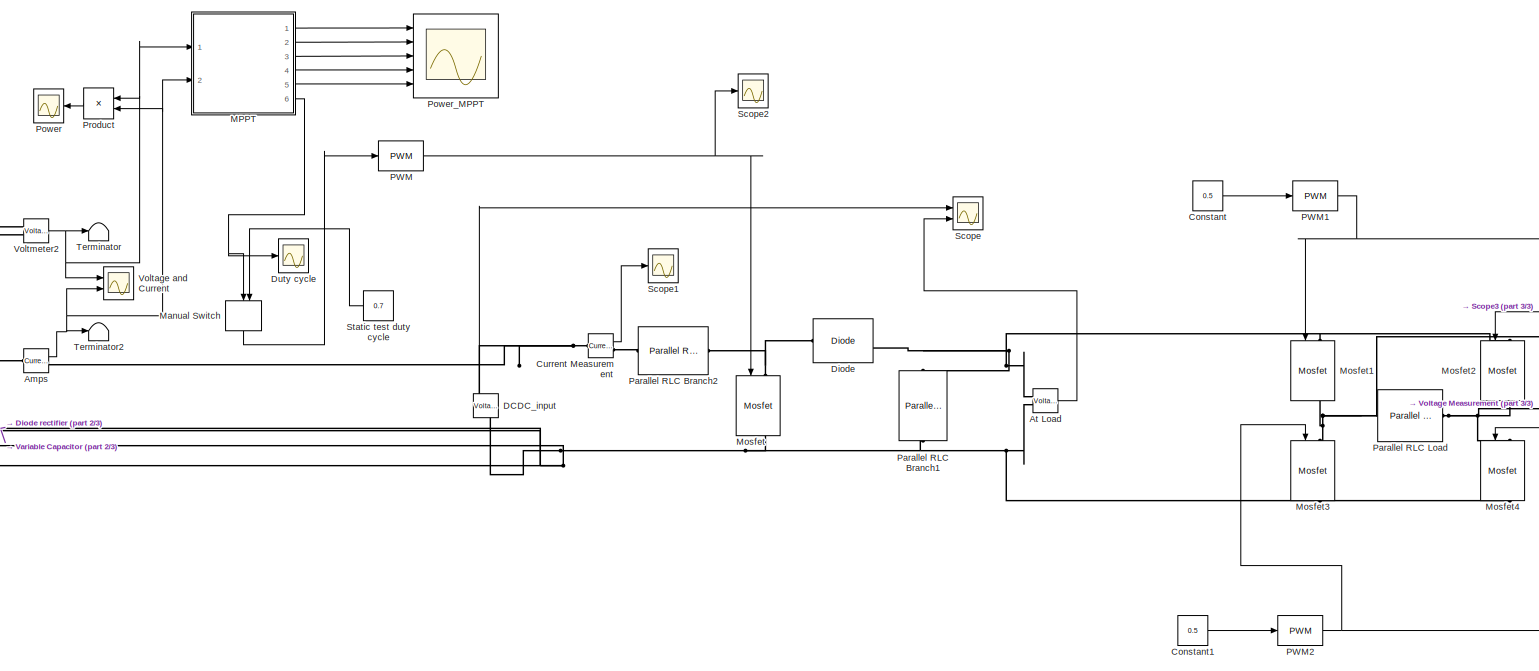
[diagram: root canvas - part 1/3, center side, full height]
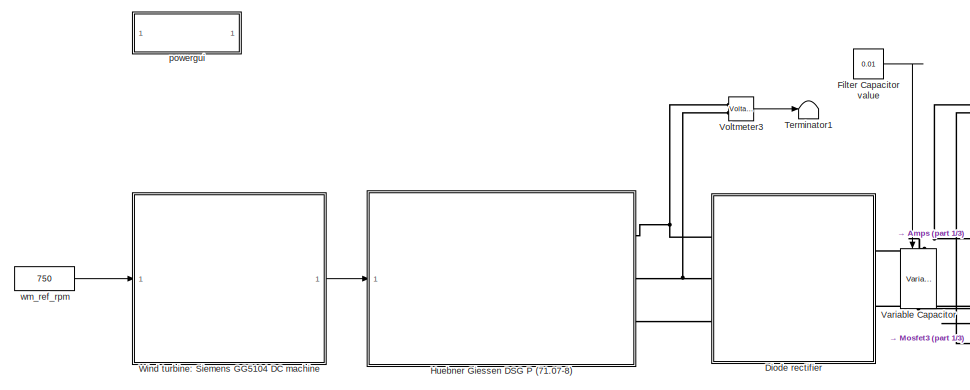
[diagram: root canvas - part 2/3, middle left region]
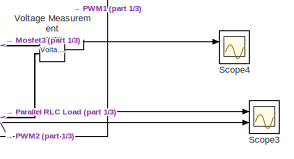
[diagram: root canvas - part 3/3, middle right region]
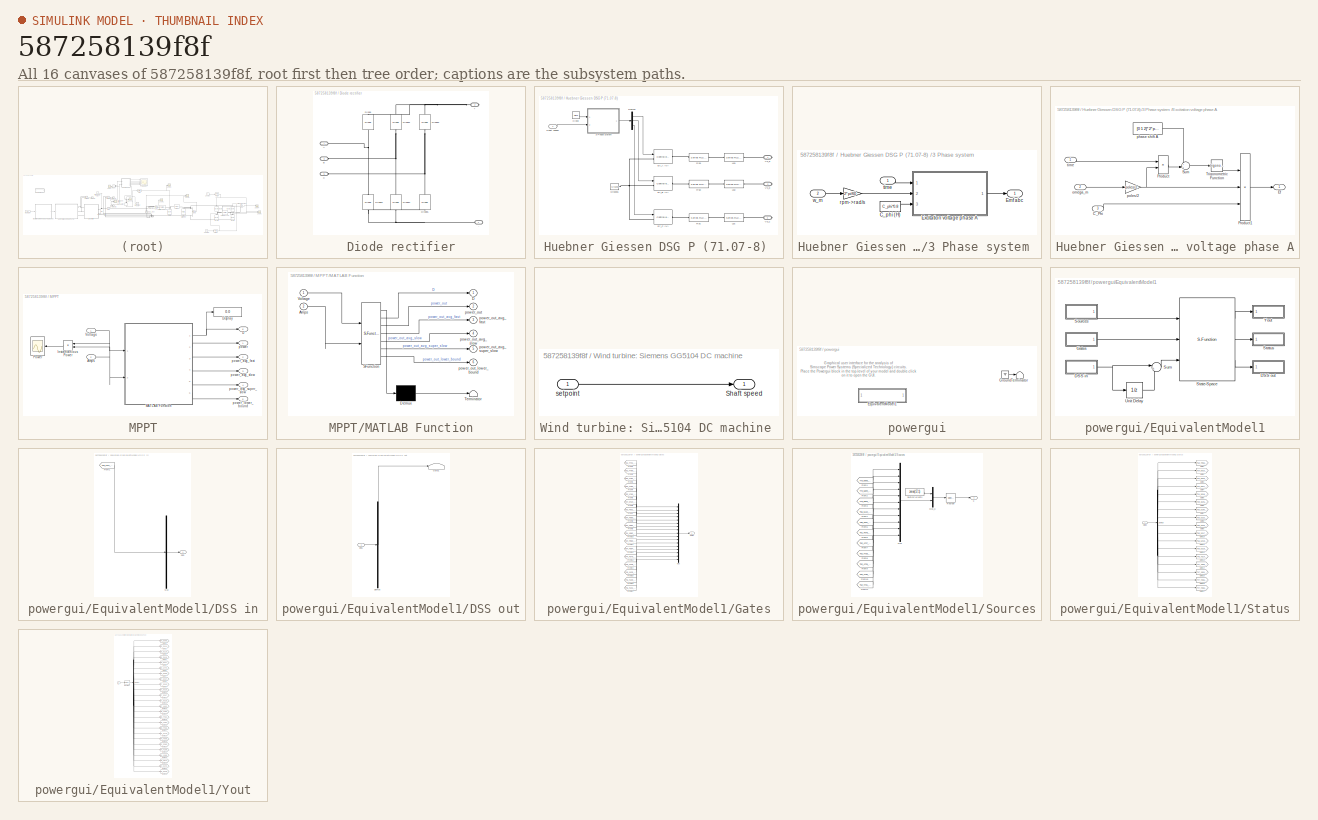
[diagram: thumbnail index - all 16 canvases of the model, root first then tree order]
MODEL slx_587258139f8f
KIND model
CONFIG AbsTol = auto
CONFIG EnableMultiTasking = off
CONFIG FixedStep = auto
CONFIG MaxStep = auto
CONFIG MinStep = auto
CONFIG RelTol = 1e-3
CONFIG SampleTimeConstraint = Unconstrained
CONFIG SolverName = VariableStepAuto
CONFIG StartTime = 0.0
CONFIG StopTime = 5
WORKSPACE source: mxarray member
WORKSPACE C = 0.00044
WORKSPACE L = 0.00025
BLOCK [Reference] Amps  REF=spsCurrentMeasurementLib/Current Measurement
  Ports = [0, 1, 0, 0, 0, 1, 1]
  SourceBlock = spsCurrentMeasurementLib/Current Measurement
  SourceType = Current Measurement
  UserDataPersistent = on
BLOCK [Reference] At Load  REF=spsVoltageMeasurementLib/Voltage Measurement
  Ports = [0, 1, 0, 0, 0, 2]
  SourceBlock = spsVoltageMeasurementLib/Voltage Measurement
  SourceType = Voltage Measurement
  UserDataPersistent = on
BLOCK [Constant] Constant
  Value = 0.5
BLOCK [Constant] Constant1
  Value = 0.5
BLOCK [Reference] Current Measurement  REF=spsCurrentMeasurementLib/Current Measurement
  Ports = [0, 1, 0, 0, 0, 1, 1]
  SourceBlock = spsCurrentMeasurementLib/Current Measurement
  SourceType = Current Measurement
  UserDataPersistent = on
BLOCK [Reference] DCDC_input  REF=spsVoltageMeasurementLib/Voltage Measurement
  NameLocation = top
  Ports = [0, 1, 0, 0, 0, 2]
  SourceBlock = spsVoltageMeasurementLib/Voltage Measurement
  SourceType = Voltage Measurement
  UserDataPersistent = on
BLOCK [Reference] Diode  REF=spsDiodeLib/Diode
  Ports = [0, 1, 0, 0, 0, 1, 1]
  SourceBlock = spsDiodeLib/Diode
  SourceType = Diode
BLOCK [SubSystem] Diode rectifier
  Ports = [0, 0, 0, 0, 0, 3, 2]
BLOCK [PMIOPort] Diode rectifier/+
  NameLocation = top
  Port = 2
  Side = Right
BLOCK [PMIOPort] Diode rectifier/-
  NameLocation = top
  Port = 4
  Side = Right
BLOCK [PMIOPort] Diode rectifier/A
  Side = Left
BLOCK [PMIOPort] Diode rectifier/B
  Port = 3
  Side = Left
BLOCK [PMIOPort] Diode rectifier/C
  Port = 5
  Side = Left
BLOCK [Reference] Diode rectifier/Diode  REF=spsDiodeLib/Diode
  NameLocation = right
  Ports = [0, 0, 0, 0, 0, 1, 1]
  SourceBlock = spsDiodeLib/Diode
  SourceType = Diode
BLOCK [Reference] Diode rectifier/Diode1  REF=spsDiodeLib/Diode
  NameLocation = right
  Ports = [0, 0, 0, 0, 0, 1, 1]
  SourceBlock = spsDiodeLib/Diode
  SourceType = Diode
BLOCK [Reference] Diode rectifier/Diode2  REF=spsDiodeLib/Diode
  NameLocation = right
  Ports = [0, 0, 0, 0, 0, 1, 1]
  SourceBlock = spsDiodeLib/Diode
  SourceType = Diode
BLOCK [Reference] Diode rectifier/Diode3  REF=spsDiodeLib/Diode
  NameLocation = right
  Ports = [0, 0, 0, 0, 0, 1, 1]
  SourceBlock = spsDiodeLib/Diode
  SourceType = Diode
BLOCK [Reference] Diode rectifier/Diode4  REF=spsDiodeLib/Diode
  NameLocation = right
  Ports = [0, 0, 0, 0, 0, 1, 1]
  SourceBlock = spsDiodeLib/Diode
  SourceType = Diode
BLOCK [Reference] Diode rectifier/Diode5  REF=spsDiodeLib/Diode
  NameLocation = right
  Ports = [0, 0, 0, 0, 0, 1, 1]
  SourceBlock = spsDiodeLib/Diode
  SourceType = Diode
BLOCK [Scope] Duty cycle
  Floating = off
  NumInputPorts = 1
  Ports = [1]
  ScopeSpecificationString = Simulink.scopes.TimeScopeBlockCfg('CurrentConfiguration', extmgr.ConfigurationSet(extmgr.Configuration('Core','General UI',true),extmgr.Configuration('Core','Source UI',true),extmgr.Configuration('Sources','WiredSimulink',true,'DataLoggingVariableName','ScopeData1'),extmgr.Configuration('Visuals','Time Domain',true,'SerializedDisplays',{struct('MinYLimReal','0','MaxYLimReal','1','YLabelReal','','M...<+1384ch>
BLOCK [Constant] Filter Capacitor value
  Value = 0.01
BLOCK [SubSystem] Huebner Giessen DSG P (71.07-8) 
  Ports = [1, 0, 0, 0, 0, 0, 3]
BLOCK [SubSystem] Huebner Giessen DSG P (71.07-8) /3 Phase system 
  Ports = [2, 1]
BLOCK [Constant] Huebner Giessen DSG P (71.07-8) /3 Phase system /C_phi (H)
  Value = C_phi*0.8
  VectorParams1D = off
BLOCK [Outport] Huebner Giessen DSG P (71.07-8) /3 Phase system /Emf abc 
BLOCK [SubSystem] Huebner Giessen DSG P (71.07-8) /3 Phase system /Excitation voltage phase A
  Ports = [3, 1]
BLOCK [Inport] Huebner Giessen DSG P (71.07-8) /3 Phase system /Excitation voltage phase A/C_Phi
  Port = 3
BLOCK [Outport] Huebner Giessen DSG P (71.07-8) /3 Phase system /Excitation voltage phase A/Ef
BLOCK [Product] Huebner Giessen DSG P (71.07-8) /3 Phase system /Excitation voltage phase A/Product
  Ports = [2, 1]
  RndMeth = Zero
BLOCK [Product] Huebner Giessen DSG P (71.07-8) /3 Phase system /Excitation voltage phase A/Product1
  Inputs = 3
  Ports = [3, 1]
  RndMeth = Zero
BLOCK [Sum] Huebner Giessen DSG P (71.07-8) /3 Phase system /Excitation voltage phase A/Sum
  Inputs = ++|
  Ports = [2, 1]
BLOCK [Trigonometry] Huebner Giessen DSG P (71.07-8) /3 Phase system /Excitation voltage phase A/Trigonometric Function
  Ports = [1, 1]
BLOCK [Inport] Huebner Giessen DSG P (71.07-8) /3 Phase system /Excitation voltage phase A/omega_m
  Port = 2
BLOCK [Constant] Huebner Giessen DSG P (71.07-8) /3 Phase system /Excitation voltage phase A/phase shift A
  Value = [0 1 2]*2*pi/3
BLOCK [Gain] Huebner Giessen DSG P (71.07-8) /3 Phase system /Excitation voltage phase A/poles//2
  Gain = poles/2
BLOCK [Inport] Huebner Giessen DSG P (71.07-8) /3 Phase system /Excitation voltage phase A/time
BLOCK [Gain] Huebner Giessen DSG P (71.07-8) /3 Phase system /rpm->rad//s
  Gain = 2*pi/60
BLOCK [Inport] Huebner Giessen DSG P (71.07-8) /3 Phase system /time
BLOCK [Inport] Huebner Giessen DSG P (71.07-8) /3 Phase system /w_m
  Port = 2
BLOCK [Clock] Huebner Giessen DSG P (71.07-8) /Clock
BLOCK [Demux] Huebner Giessen DSG P (71.07-8) /Demux
  Outputs = 3
  Ports = [1, 3]
BLOCK [Reference] Huebner Giessen DSG P (71.07-8) /Ef_A (V)  REF=spsControlledVoltageSourceLib/Controlled Voltage Source
  Ports = [1, 0, 0, 0, 0, 1, 1]
  SourceBlock = spsControlledVoltageSourceLib/Controlled Voltage Source
  SourceType = Controlled Voltage Source
BLOCK [Reference] Huebner Giessen DSG P (71.07-8) /Ef_B (V)  REF=spsControlledVoltageSourceLib/Controlled Voltage Source
  Ports = [1, 0, 0, 0, 0, 1, 1]
  SourceBlock = spsControlledVoltageSourceLib/Controlled Voltage Source
  SourceType = Controlled Voltage Source
BLOCK [Reference] Huebner Giessen DSG P (71.07-8) /Ef_C (V)  REF=spsControlledVoltageSourceLib/Controlled Voltage Source
  Ports = [1, 0, 0, 0, 0, 1, 1]
  SourceBlock = spsControlledVoltageSourceLib/Controlled Voltage Source
  SourceType = Controlled Voltage Source
BLOCK [Reference] Huebner Giessen DSG P (71.07-8) /Ground1  REF=spsGroundLib/Ground
  Ports = [0, 0, 0, 0, 0, 1]
  SourceBlock = spsGroundLib/Ground
  SourceType = Ground
BLOCK [Reference] Huebner Giessen DSG P (71.07-8) /Lsa  REF=spsSeriesRLCBranchLib/Series RLC Branch
  Ports = [0, 0, 0, 0, 0, 1, 1]
  SourceBlock = spsSeriesRLCBranchLib/Series RLC Branch
  SourceType = Series RLC Branch
BLOCK [Reference] Huebner Giessen DSG P (71.07-8) /Lsb  REF=spsSeriesRLCBranchLib/Series RLC Branch
  Ports = [0, 0, 0, 0, 0, 1, 1]
  SourceBlock = spsSeriesRLCBranchLib/Series RLC Branch
  SourceType = Series RLC Branch
BLOCK [Reference] Huebner Giessen DSG P (71.07-8) /Lsc  REF=spsSeriesRLCBranchLib/Series RLC Branch
  Ports = [0, 0, 0, 0, 0, 1, 1]
  SourceBlock = spsSeriesRLCBranchLib/Series RLC Branch
  SourceType = Series RLC Branch
BLOCK [Reference] Huebner Giessen DSG P (71.07-8) /Rsa  REF=spsSeriesRLCBranchLib/Series RLC Branch
  Ports = [0, 0, 0, 0, 0, 1, 1]
  SourceBlock = spsSeriesRLCBranchLib/Series RLC Branch
  SourceType = Series RLC Branch
BLOCK [Reference] Huebner Giessen DSG P (71.07-8) /Rsb  REF=spsSeriesRLCBranchLib/Series RLC Branch
  Ports = [0, 0, 0, 0, 0, 1, 1]
  SourceBlock = spsSeriesRLCBranchLib/Series RLC Branch
  SourceType = Series RLC Branch
BLOCK [Reference] Huebner Giessen DSG P (71.07-8) /Rsc  REF=spsSeriesRLCBranchLib/Series RLC Branch
  Ports = [0, 0, 0, 0, 0, 1, 1]
  SourceBlock = spsSeriesRLCBranchLib/Series RLC Branch
  SourceType = Series RLC Branch
BLOCK [Inport] Huebner Giessen DSG P (71.07-8) /Shaft speed
BLOCK [PMIOPort] Huebner Giessen DSG P (71.07-8) /Vs_a
  Side = Right
BLOCK [PMIOPort] Huebner Giessen DSG P (71.07-8) /Vs_b
  Port = 2
  Side = Right
BLOCK [PMIOPort] Huebner Giessen DSG P (71.07-8) /Vs_c
  Port = 3
  Side = Right
BLOCK [SubSystem] MPPT
  Ports = [2, 6]
BLOCK [Inport] MPPT/Amps
  Port = 2
BLOCK [Outport] MPPT/D
  Port = 6
BLOCK [Display] MPPT/Display
  Decimation = 1
  Ports = [1]
BLOCK [Product] MPPT/Instantanious Power
  NameLocation = top
  Ports = [2, 1]
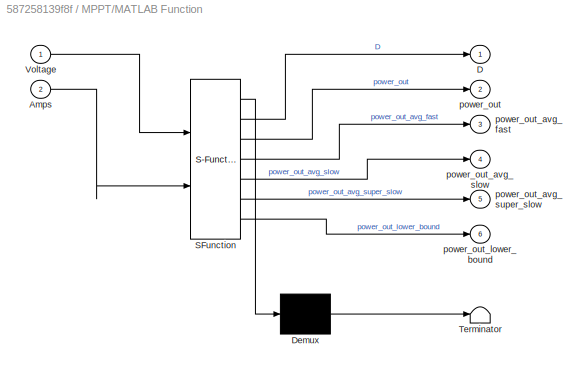
BLOCK [SubSystem] MPPT/MATLAB Function
  ErrorFcn = Stateflow.Translate.translate
  PermitHierarchicalResolution = ExplicitOnly
  Ports = [2, 6]
  SFBlockType = MATLAB Function
  SystemSampleTime = 0.0002
  TreatAsAtomicUnit = on
BLOCK [Demux] MPPT/MATLAB Function/ Demux 
  Outputs = 1
  Ports = [1, 1]
BLOCK [S-Function] MPPT/MATLAB Function/ SFunction 
  EnableBusSupport = on
  FunctionName = sf_sfun
  PortCounts = [2 7]
  Ports = [2, 7]
  SFcnIsStateOwnerBlock = off
  SFunctionDeploymentMode = off
  Tag = Stateflow S-Function 2
BLOCK [Terminator] MPPT/MATLAB Function/ Terminator 
BLOCK [Inport] MPPT/MATLAB Function/Amps
  Port = 2
BLOCK [Outport] MPPT/MATLAB Function/D
BLOCK [Inport] MPPT/MATLAB Function/Voltage
BLOCK [Outport] MPPT/MATLAB Function/power_out
  Port = 2
BLOCK [Outport] MPPT/MATLAB Function/power_out_avg_fast
  Port = 3
BLOCK [Outport] MPPT/MATLAB Function/power_out_avg_slow
  Port = 4
BLOCK [Outport] MPPT/MATLAB Function/power_out_avg_super_slow
  Port = 5
BLOCK [Outport] MPPT/MATLAB Function/power_out_lower_bound
  Port = 6
BLOCK [Scope] MPPT/Power
  Floating = off
  NameLocation = top
  NumInputPorts = 1
  Ports = [1]
  ScopeSpecificationString = Simulink.scopes.TimeScopeBlockCfg('CurrentConfiguration', extmgr.ConfigurationSet(extmgr.Configuration('Core','General UI',true),extmgr.Configuration('Core','Source UI',true),extmgr.Configuration('Sources','WiredSimulink',true,'DataLoggingVariableName','ScopeData1'),extmgr.Configuration('Visuals','Time Domain',true,'SerializedDisplays',{struct('MinYLimReal','-52.45852','MaxYLimReal','472.12667','Y...<+1462ch>
BLOCK [Inport] MPPT/Voltage
BLOCK [Outport] MPPT/power
BLOCK [Outport] MPPT/power_avg_fast
  Port = 2
BLOCK [Outport] MPPT/power_avg_slow
  Port = 3
BLOCK [Outport] MPPT/power_avg_super_slow
  Port = 4
BLOCK [Outport] MPPT/power_lower_bound
  Port = 5
BLOCK [ManualSwitch] Manual Switch
  NameLocation = left
BLOCK [Reference] Mosfet  REF=spsMosfetLib/Mosfet
  NameLocation = left
  Ports = [1, 1, 0, 0, 0, 1, 1]
  SourceBlock = spsMosfetLib/Mosfet
  SourceType = Mosfet
BLOCK [Reference] Mosfet1  REF=spsMosfetLib/Mosfet
  NameLocation = left
  Ports = [1, 1, 0, 0, 0, 1, 1]
  SourceBlock = spsMosfetLib/Mosfet
  SourceType = Mosfet
BLOCK [Reference] Mosfet2  REF=spsMosfetLib/Mosfet
  NameLocation = left
  Ports = [1, 1, 0, 0, 0, 1, 1]
  SourceBlock = spsMosfetLib/Mosfet
  SourceType = Mosfet
BLOCK [Reference] Mosfet3  REF=spsMosfetLib/Mosfet
  NameLocation = left
  Ports = [1, 1, 0, 0, 0, 1, 1]
  SourceBlock = spsMosfetLib/Mosfet
  SourceType = Mosfet
BLOCK [Reference] Mosfet4  REF=spsMosfetLib/Mosfet
  NameLocation = left
  Ports = [1, 1, 0, 0, 0, 1, 1]
  SourceBlock = spsMosfetLib/Mosfet
  SourceType = Mosfet
BLOCK [Reference] PWM  REF=simulink/Discontinuities/PWM
  DisableCoverage = on
  Ports = [1, 1]
  SourceBlock = simulink/Discontinuities/PWM
  SourceType = PWM
BLOCK [Reference] PWM1  REF=simulink/Discontinuities/PWM
  DisableCoverage = on
  Ports = [1, 1]
  SourceBlock = simulink/Discontinuities/PWM
  SourceType = PWM
BLOCK [Reference] PWM2  REF=simulink/Discontinuities/PWM
  DisableCoverage = on
  Ports = [1, 1]
  SourceBlock = simulink/Discontinuities/PWM
  SourceType = PWM
BLOCK [Reference] Parallel RLC Branch1  REF=spsParallelRLCBranchLib/Parallel RLC Branch
  AttributesFormatString = \n
  NameLocation = left
  Ports = [0, 0, 0, 0, 0, 1, 1]
  SourceBlock = spsParallelRLCBranchLib/Parallel RLC Branch
  SourceType = Parallel RLC Branch
BLOCK [Reference] Parallel RLC Branch2  REF=spsParallelRLCBranchLib/Parallel RLC Branch
  AttributesFormatString = \n
  Ports = [0, 0, 0, 0, 0, 1, 1]
  SourceBlock = spsParallelRLCBranchLib/Parallel RLC Branch
  SourceType = Parallel RLC Branch
BLOCK [Reference] Parallel RLC Load  REF=spsParallelRLCLoadLib/Parallel RLC Load
  AttributesFormatString = \n
  Ports = [0, 0, 0, 0, 0, 1, 1]
  SourceBlock = spsParallelRLCLoadLib/Parallel RLC Load
  SourceType = Parallel RLC Load
BLOCK [Scope] Power
  Floating = off
  NameLocation = top
  NumInputPorts = 1
  Ports = [1]
  ScopeSpecificationString = Simulink.scopes.TimeScopeBlockCfg('CurrentConfiguration', extmgr.ConfigurationSet(extmgr.Configuration('Core','General UI',true),extmgr.Configuration('Core','Source UI',true),extmgr.Configuration('Sources','WiredSimulink',true,'DataLoggingVariableName','ScopeData2'),extmgr.Configuration('Visuals','Time Domain',true,'SerializedDisplays',{struct('MinYLimReal','0','MaxYLimReal','450','YLabelReal','',...<+1420ch>
BLOCK [Scope] Power_MPPT
  Floating = off
  NumInputPorts = 5
  Ports = [5]
  ScopeSpecificationString = Simulink.scopes.TimeScopeBlockCfg('CurrentConfiguration', extmgr.ConfigurationSet(extmgr.Configuration('Core','General UI',true),extmgr.Configuration('Core','Source UI',true),extmgr.Configuration('Sources','WiredSimulink',true,'DataLoggingVariableName','ScopeData3'),extmgr.Configuration('Visuals','Time Domain',true,'SerializedDisplays',{struct('MinYLimReal','0','MaxYLimReal','400','YLabelReal','',...<+1517ch>
BLOCK [Product] Product
  NameLocation = top
  Ports = [2, 1]
BLOCK [Scope] Scope
  Floating = off
  NumInputPorts = 2
  Ports = [2]
  ScopeSpecificationString = Simulink.scopes.TimeScopeBlockCfg('CurrentConfiguration', extmgr.ConfigurationSet(extmgr.Configuration('Core','General UI',true),extmgr.Configuration('Core','Source UI',true),extmgr.Configuration('Sources','WiredSimulink',true,'DataLoggingVariableName','ScopeData4'),extmgr.Configuration('Visuals','Time Domain',true,'SerializedDisplays',{struct('MinYLimReal','0','MaxYLimReal','500','YLabelReal','',...<+1402ch>
BLOCK [Scope] Scope1
  Floating = off
  NumInputPorts = 1
  Ports = [1]
  ScopeSpecificationString = Simulink.scopes.TimeScopeBlockCfg('CurrentConfiguration', extmgr.ConfigurationSet(extmgr.Configuration('Core','General UI',true),extmgr.Configuration('Core','Source UI',true),extmgr.Configuration('Sources','WiredSimulink',true,'DataLoggingVariableName','ScopeData5'),extmgr.Configuration('Visuals','Time Domain',true,'SerializedDisplays',{struct('MinYLimReal','0','MaxYLimReal','100','YLabelReal','',...<+1430ch>
BLOCK [Scope] Scope2
  Floating = off
  NumInputPorts = 1
  Ports = [1]
  ScopeSpecificationString = Simulink.scopes.TimeScopeBlockCfg('CurrentConfiguration', extmgr.ConfigurationSet(extmgr.Configuration('Core','General UI',true),extmgr.Configuration('Core','Source UI',true),extmgr.Configuration('Sources','WiredSimulink',true,'DataLoggingVariableName','ScopeData6'),extmgr.Configuration('Visuals','Time Domain',true,'SerializedDisplays',{struct('MinYLimReal','-0.00623','MaxYLimReal','1.00547','YLab...<+1407ch>
BLOCK [Scope] Scope3
  Floating = off
  NumInputPorts = 2
  Ports = [2]
  ScopeSpecificationString = Simulink.scopes.TimeScopeBlockCfg('CurrentConfiguration', extmgr.ConfigurationSet(extmgr.Configuration('Core','General UI',true),extmgr.Configuration('Core','Source UI',true),extmgr.Configuration('Sources','WiredSimulink',true,'DataLoggingVariableName','ScopeData8'),extmgr.Configuration('Visuals','Time Domain',true,'SerializedDisplays',{struct('MinYLimReal','-0.125','MaxYLimReal','1.125','YLabelRe...<+1385ch>
BLOCK [Scope] Scope4
  Floating = off
  NumInputPorts = 2
  Ports = [2]
  ScopeSpecificationString = Simulink.scopes.TimeScopeBlockCfg('CurrentConfiguration', extmgr.ConfigurationSet(extmgr.Configuration('Core','General UI',true),extmgr.Configuration('Core','Source UI',true),extmgr.Configuration('Sources','WiredSimulink',true,'DataLoggingVariableName','ScopeData9'),extmgr.Configuration('Visuals','Time Domain',true,'SerializedDisplays',{struct('MinYLimReal','-209.63812','MaxYLimReal','209.86994','...<+1432ch>
BLOCK [Constant] Static test duty cycle
  Value = 0.7
BLOCK [Terminator] Terminator
BLOCK [Terminator] Terminator1
BLOCK [Terminator] Terminator2
BLOCK [Reference] Variable Capacitor  REF=spsVariableCapacitorLib/Variable Capacitor
  NameLocation = left
  Ports = [1, 0, 0, 0, 0, 1, 1]
  SourceBlock = spsVariableCapacitorLib/Variable Capacitor
  SourceType = Variable Capacitor
BLOCK [Reference] Voltage Measurement  REF=spsVoltageMeasurementLib/Voltage Measurement
  Ports = [0, 1, 0, 0, 0, 2]
  SourceBlock = spsVoltageMeasurementLib/Voltage Measurement
  SourceType = Voltage Measurement
  UserDataPersistent = on
BLOCK [Scope] Voltage and Current
  Floating = off
  NumInputPorts = 2
  Ports = [2]
  ScopeSpecificationString = Simulink.scopes.TimeScopeBlockCfg('CurrentConfiguration', extmgr.ConfigurationSet(extmgr.Configuration('Core','General UI',true),extmgr.Configuration('Core','Source UI',true),extmgr.Configuration('Sources','WiredSimulink',true,'DataLoggingVariableName','ScopeData7'),extmgr.Configuration('Visuals','Time Domain',true,'SerializedDisplays',{struct('MinYLimReal','-4.84101','MaxYLimReal','80','YLabelRea...<+1440ch>
BLOCK [Reference] Voltmeter2  REF=spsVoltageMeasurementLib/Voltage Measurement
  Ports = [0, 1, 0, 0, 0, 2]
  SourceBlock = spsVoltageMeasurementLib/Voltage Measurement
  SourceType = Voltage Measurement
  UserDataPersistent = on
BLOCK [Reference] Voltmeter3  REF=spsVoltageMeasurementLib/Voltage Measurement
  Ports = [0, 1, 0, 0, 0, 2]
  SourceBlock = spsVoltageMeasurementLib/Voltage Measurement
  SourceType = Voltage Measurement
  UserDataPersistent = on
BLOCK [SubSystem] Wind turbine: Siemens GG5104 DC machine 
  Ports = [1, 1]
BLOCK [Outport] Wind turbine: Siemens GG5104 DC machine /Shaft speed
BLOCK [Inport] Wind turbine: Siemens GG5104 DC machine /setpoint
BLOCK [SubSystem] powergui
  AncestorBlock = spspowerguiLib/powergui
  DialogController = POWERSYS.PowerSysDialog
  InitFcn = powergui( 'InitFcn_Callback' , gcb , 0 , [ ] );
  OpenFcn = sps_rtmsupport('OpenFcn',gcbh)
  Ports = []
  PreSaveFcn = powergui( 'PreSaveFcn_Callback' , gcb , [ ] , [ ] );
  Priority = 1
BLOCK [SubSystem] powergui/EquivalentModel1
  Ports = []
BLOCK [SubSystem] powergui/EquivalentModel1/DSS in
  Ports = [0, 1]
BLOCK [Outport] powergui/EquivalentModel1/DSS in/DSS
  VectorParamsAs1DForOutWhenUnconnected = off
BLOCK [From] powergui/EquivalentModel1/DSS in/From1
  GotoTag = T58_5457_5876453571207
  TagVisibility = global
BLOCK [Mux] powergui/EquivalentModel1/DSS in/Mux
  DisplayOption = bar
  Inputs = 1
  Ports = [1, 1]
BLOCK [SubSystem] powergui/EquivalentModel1/DSS out
  Ports = [1]
BLOCK [Inport] powergui/EquivalentModel1/DSS out/DSS
BLOCK [Demux] powergui/EquivalentModel1/DSS out/Demux
  Outputs = 1
  Ports = [1, 1]
BLOCK [Terminator] powergui/EquivalentModel1/DSS out/Goto1
BLOCK [SubSystem] powergui/EquivalentModel1/Gates
  Ports = [0, 1]
BLOCK [From] powergui/EquivalentModel1/Gates/From1
  GotoTag = T51_4731_4294674022502
  TagVisibility = global
BLOCK [From] powergui/EquivalentModel1/Gates/From10
  GotoTag = T54_4982_4587502394116
  TagVisibility = global
BLOCK [From] powergui/EquivalentModel1/Gates/From11
  GotoTag = T54_4983_4587669453781
  TagVisibility = global
BLOCK [From] powergui/EquivalentModel1/Gates/From12
  GotoTag = T54_4984_4587985386038
  TagVisibility = global
BLOCK [From] powergui/EquivalentModel1/Gates/From13
  GotoTag = T44_4079_3037728044863
  TagVisibility = global
BLOCK [From] powergui/EquivalentModel1/Gates/From14
  GotoTag = T45_4128_3114987659919
  TagVisibility = global
BLOCK [From] powergui/EquivalentModel1/Gates/From15
  GotoTag = T45_4129_3114093084343
  TagVisibility = global
BLOCK [From] powergui/EquivalentModel1/Gates/From16
  GotoTag = T45_4130_3113284162545
  TagVisibility = global
BLOCK [From] powergui/EquivalentModel1/Gates/From17
  GotoTag = T45_4131_3112560894525
  TagVisibility = global
BLOCK [From] powergui/EquivalentModel1/Gates/From2
  GotoTag = T52_4780_4436796252202
  TagVisibility = global
BLOCK [From] powergui/EquivalentModel1/Gates/From3
  GotoTag = T52_4781_4435253993224
  TagVisibility = global
BLOCK [From] powergui/EquivalentModel1/Gates/From4
  GotoTag = T52_4782_4433785857707
  TagVisibility = global
BLOCK [From] powergui/EquivalentModel1/Gates/From5
  GotoTag = T52_4783_4432391845652
  TagVisibility = global
BLOCK [From] powergui/EquivalentModel1/Gates/From6
  GotoTag = T37_3410_1979015038619
  TagVisibility = global
BLOCK [From] powergui/EquivalentModel1/Gates/From7
  GotoTag = T53_4931_4595405140994
  TagVisibility = global
BLOCK [From] powergui/EquivalentModel1/Gates/From8
  GotoTag = T54_4980_4587614892565
  TagVisibility = global
BLOCK [From] powergui/EquivalentModel1/Gates/From9
  GotoTag = T54_4981_4587484207044
  TagVisibility = global
BLOCK [Mux] powergui/EquivalentModel1/Gates/Mux
  DisplayOption = bar
  Inputs = [1 1 1 1 1 1 1 1 1 1 1 1 1 1 1 1 1]
  Ports = [17, 1]
BLOCK [Outport] powergui/EquivalentModel1/Gates/gates
  VectorParamsAs1DForOutWhenUnconnected = off
BLOCK [SubSystem] powergui/EquivalentModel1/Sources
  Ports = [0, 1]
BLOCK [From] powergui/EquivalentModel1/Sources/From1
  GotoTag = T73_5808_5589244937515
  TagVisibility = global
BLOCK [From] powergui/EquivalentModel1/Sources/From10
  GotoTag = T52_4730_3632146173590
  TagVisibility = global
BLOCK [From] powergui/EquivalentModel1/Sources/From11
  GotoTag = T52_4731_3633004880211
  TagVisibility = global
BLOCK [From] powergui/EquivalentModel1/Sources/From2
  GotoTag = T73_5809_5593839474437
  TagVisibility = global
BLOCK [From] powergui/EquivalentModel1/Sources/From3
  GotoTag = T73_5810_5598622296564
  TagVisibility = global
BLOCK [From] powergui/EquivalentModel1/Sources/From4
  GotoTag = T55_5110_4847160155710
  TagVisibility = global
BLOCK [From] powergui/EquivalentModel1/Sources/From5
  GotoTag = T35_3157_1280029643160
  TagVisibility = global
BLOCK [From] powergui/EquivalentModel1/Sources/From6
  GotoTag = T51_4678_3684693042737
  TagVisibility = global
BLOCK [From] powergui/EquivalentModel1/Sources/From7
  GotoTag = T52_4727_3630497644495
  TagVisibility = global
BLOCK [From] powergui/EquivalentModel1/Sources/From8
  GotoTag = T52_4728_3630892555732
  TagVisibility = global
BLOCK [From] powergui/EquivalentModel1/Sources/From9
  GotoTag = T52_4729_3631442065430
  TagVisibility = global
BLOCK [Mux] powergui/EquivalentModel1/Sources/Mux
  DisplayOption = bar
  Inputs = [1 1 1 1 1 1 1 1 1 1 1]
  Ports = [11, 1]
BLOCK [Mux] powergui/EquivalentModel1/Sources/Mux_u
  DisplayOption = bar
  Inputs = [17 11]
  Ports = [2, 1]
BLOCK [Selector] powergui/EquivalentModel1/Sources/Reorder
  IndexOptions = Index vector (dialog)
  Indices = [1 2 3 4 5 6 7 8 9 10 11 12 13 14 15 16 17 18 19 20 22 23 24 25 26 27 28 21]
  InputPortWidth = 28
  OutputSizes = 1
  Ports = [1, 1]
BLOCK [Constant] powergui/EquivalentModel1/Sources/SwitchCurrents
  NameLocation = top
  Value = zeros(17,1)
BLOCK [Outport] powergui/EquivalentModel1/Sources/u
  VectorParamsAs1DForOutWhenUnconnected = off
BLOCK [S-Function] powergui/EquivalentModel1/State-Space
  EnableBusSupport = off
  FunctionName = sfun_spssw_discc_DSS
  Parameters = S.Ts, S.A, S.B, S.C, S.D, S.x0, S.EnableUseOfTLC, S.NonLinearDim,  S.NonLinearxInit, S.NonLinear_Inputs, S.NonLinear_Outputs, S.NonLinear_InitialOutputs, S.NonLinearIterative, S.NonLinear_SizeVI,  S.NonLinear_VI, S.NonLinear_Method , S.Nonlinear_Tolerance, double(nMaxIteration), double(ContinueOnMaxIteration),S.SwitchResistance ,S.SwitchType, S.SwitchGateInitialValue, S.OutputsToResetToZero, doubl...<+10ch>
  Ports = [3, 3]
  SFcnIsStateOwnerBlock = off
  SFunctionDeploymentMode = off
  SFunctionModules = DSS_Utils
BLOCK [SubSystem] powergui/EquivalentModel1/Status
  Ports = [1]
BLOCK [Demux] powergui/EquivalentModel1/Status/Demux
  Outputs = [1 1 1 1 1 1 1 1 1 1 1 1 1 1 1 1 1]
  Ports = [1, 17]
BLOCK [Goto] powergui/EquivalentModel1/Status/Goto1
  GotoTag = T53_4966_4969212799064
  TagVisibility = global
BLOCK [Goto] powergui/EquivalentModel1/Status/Goto10
  GotoTag = T56_5217_5319748622542
  TagVisibility = global
BLOCK [Goto] powergui/EquivalentModel1/Status/Goto11
  GotoTag = T56_5218_5319479312516
  TagVisibility = global
BLOCK [Goto] powergui/EquivalentModel1/Status/Goto12
  GotoTag = T56_5219_5319353558205
  TagVisibility = global
BLOCK [Goto] powergui/EquivalentModel1/Status/Goto13
  GotoTag = T46_4314_3637660801493
  TagVisibility = global
BLOCK [Goto] powergui/EquivalentModel1/Status/Goto14
  GotoTag = T47_4363_3745839164089
  TagVisibility = global
BLOCK [Goto] powergui/EquivalentModel1/Status/Goto15
  GotoTag = T47_4364_3744624068131
  TagVisibility = global
BLOCK [Goto] powergui/EquivalentModel1/Status/Goto16
  GotoTag = T47_4365_3743490981110
  TagVisibility = global
BLOCK [Goto] powergui/EquivalentModel1/Status/Goto17
  GotoTag = T47_4366_3742439903025
  TagVisibility = global
BLOCK [Goto] powergui/EquivalentModel1/Status/Goto2
  GotoTag = T54_5015_5138443847648
  TagVisibility = global
BLOCK [Goto] powergui/EquivalentModel1/Status/Goto3
  GotoTag = T54_5016_5136650133836
  TagVisibility = global
BLOCK [Goto] powergui/EquivalentModel1/Status/Goto4
  GotoTag = T54_5017_5134927798173
  TagVisibility = global
BLOCK [Goto] powergui/EquivalentModel1/Status/Goto5
  GotoTag = T54_5018_5133276840657
  TagVisibility = global
BLOCK [Goto] powergui/EquivalentModel1/Status/Goto6
  GotoTag = T39_3645_2511197562078
  TagVisibility = global
BLOCK [Goto] powergui/EquivalentModel1/Status/Goto7
  GotoTag = T55_5166_5290596991636
  TagVisibility = global
BLOCK [Goto] powergui/EquivalentModel1/Status/Goto8
  GotoTag = T56_5215_5320717909737
  TagVisibility = global
BLOCK [Goto] powergui/EquivalentModel1/Status/Goto9
  GotoTag = T56_5216_5320161488282
  TagVisibility = global
BLOCK [Inport] powergui/EquivalentModel1/Status/status
BLOCK [Sum] powergui/EquivalentModel1/Sum
  Inputs = |+-
  Ports = [2, 1]
BLOCK [UnitDelay] powergui/EquivalentModel1/Unit Delay
  HasFrameUpgradeWarning = on
  SampleTime = S.Ts
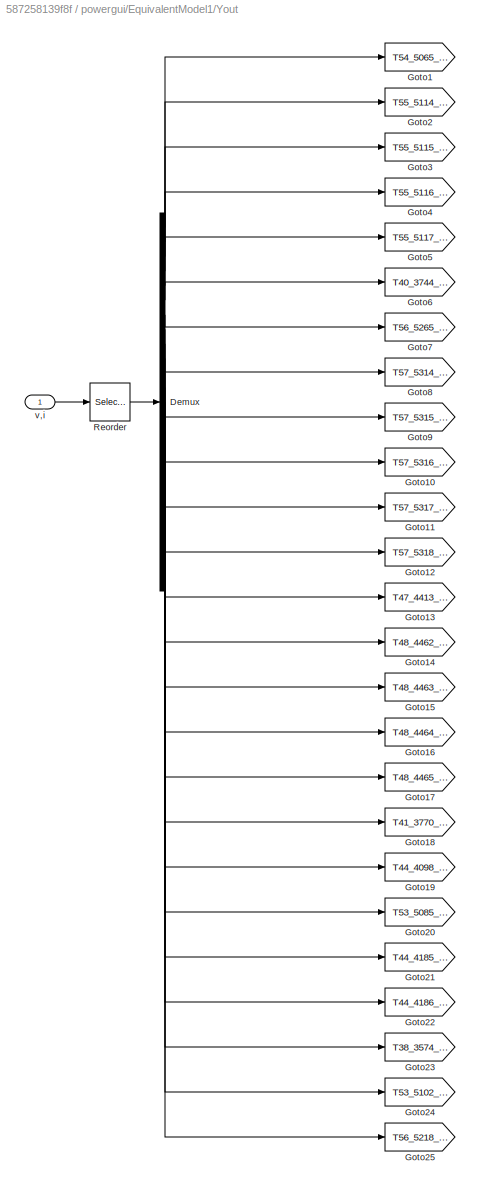
BLOCK [SubSystem] powergui/EquivalentModel1/Yout
  Ports = [1]
BLOCK [Demux] powergui/EquivalentModel1/Yout/Demux
  Outputs = [1 1 1 1 1 1 1 1 1 1 1 1 1 1 1 1 1 1 1 1 1 1 1 1 1]
  Ports = [1, 25]
BLOCK [Goto] powergui/EquivalentModel1/Yout/Goto1
  GotoTag = T54_5065_5086793586485
  TagVisibility = global
BLOCK [Goto] powergui/EquivalentModel1/Yout/Goto10
  GotoTag = T57_5316_5452977979461
  TagVisibility = global
BLOCK [Goto] powergui/EquivalentModel1/Yout/Goto11
  GotoTag = T57_5317_5452559861228
  TagVisibility = global
BLOCK [Goto] powergui/EquivalentModel1/Yout/Goto12
  GotoTag = T57_5318_5452282780188
  TagVisibility = global
BLOCK [Goto] powergui/EquivalentModel1/Yout/Goto13
  GotoTag = T47_4413_3742553311249
  TagVisibility = global
BLOCK [Goto] powergui/EquivalentModel1/Yout/Goto14
  GotoTag = T48_4462_3859829950142
  TagVisibility = global
BLOCK [Goto] powergui/EquivalentModel1/Yout/Goto15
  GotoTag = T48_4463_3858513014357
  TagVisibility = global
BLOCK [Goto] powergui/EquivalentModel1/Yout/Goto16
  GotoTag = T48_4464_3857276378989
  TagVisibility = global
BLOCK [Goto] powergui/EquivalentModel1/Yout/Goto17
  GotoTag = T48_4465_3856120044038
  TagVisibility = global
BLOCK [Goto] powergui/EquivalentModel1/Yout/Goto18
  GotoTag = T41_3770_2751863444524
  TagVisibility = global
BLOCK [Goto] powergui/EquivalentModel1/Yout/Goto19
  GotoTag = T44_4098_3385596257859
  TagVisibility = global
BLOCK [Goto] powergui/EquivalentModel1/Yout/Goto2
  GotoTag = T55_5114_5263663739111
  TagVisibility = global
BLOCK [Goto] powergui/EquivalentModel1/Yout/Goto20
  GotoTag = T53_5085_5197118451640
  TagVisibility = global
BLOCK [Goto] powergui/EquivalentModel1/Yout/Goto21
  GotoTag = T44_4185_3379549972727
  TagVisibility = global
BLOCK [Goto] powergui/EquivalentModel1/Yout/Goto22
  GotoTag = T44_4186_3378885850846
  TagVisibility = global
BLOCK [Goto] powergui/EquivalentModel1/Yout/Goto23
  GotoTag = T38_3574_2415380775477
  TagVisibility = global
BLOCK [Goto] powergui/EquivalentModel1/Yout/Goto24
  GotoTag = T53_5102_5279104071785
  TagVisibility = global
BLOCK [Goto] powergui/EquivalentModel1/Yout/Goto25
  GotoTag = T56_5218_5120677176156
  TagVisibility = global
BLOCK [Goto] powergui/EquivalentModel1/Yout/Goto3
  GotoTag = T55_5115_5261792803886
  TagVisibility = global
BLOCK [Goto] powergui/EquivalentModel1/Yout/Goto4
  GotoTag = T55_5116_5259991949024
  TagVisibility = global
BLOCK [Goto] powergui/EquivalentModel1/Yout/Goto5
  GotoTag = T55_5117_5258261174525
  TagVisibility = global
BLOCK [Goto] powergui/EquivalentModel1/Yout/Goto6
  GotoTag = T40_3744_2605614727282
  TagVisibility = global
BLOCK [Goto] powergui/EquivalentModel1/Yout/Goto7
  GotoTag = T56_5265_5412050041373
  TagVisibility = global
BLOCK [Goto] powergui/EquivalentModel1/Yout/Goto8
  GotoTag = T57_5314_5454237327506
  TagVisibility = global
BLOCK [Goto] powergui/EquivalentModel1/Yout/Goto9
  GotoTag = T57_5315_5453537134887
  TagVisibility = global
BLOCK [Selector] powergui/EquivalentModel1/Yout/Reorder
  IndexOptions = Index vector (dialog)
  Indices = [1 2 3 4 5 6 7 8 9 10 11 12 13 14 15 16 17 18 19 20 21 22 23 24 25]
  InputPortWidth = 25
  OutputSizes = 1
  Ports = [1, 1]
BLOCK [Inport] powergui/EquivalentModel1/Yout/v,i
BLOCK [Ground] powergui/Ground
BLOCK [Terminator] powergui/Terminator
BLOCK [Constant] wm_ref_rpm
  Value = 750
ANNOTATION powergui: Graphical user interface for the analysis of Simscape Power Systems (Specialized Technology) circuits. Place the Powergui block in the top-level of your model and double-click on it to open the GUI.
NET Amps:1 -> MPPT:2, Product:2, Terminator2:1, Voltage and Current:2
LINE At Load:1 -> Scope:2
LINE Constant1:1 -> PWM2:1
LINE Constant:1 -> PWM1:1
LINE Current Measurement:1 -> Scope1:1
LINE DCDC_input:1 -> Scope:1
LINE Filter Capacitor value:1 -> Variable Capacitor:1
LINE Huebner Giessen DSG P (71.07-8) /3 Phase system /C_phi (H):1 -> Huebner Giessen DSG P (71.07-8) /3 Phase system /Excitation voltage phase A:3
LINE Huebner Giessen DSG P (71.07-8) /3 Phase system /Excitation voltage phase A/C_Phi:1 -> Huebner Giessen DSG P (71.07-8) /3 Phase system /Excitation voltage phase A/Product1:3
LINE Huebner Giessen DSG P (71.07-8) /3 Phase system /Excitation voltage phase A/Product1:1 -> Huebner Giessen DSG P (71.07-8) /3 Phase system /Excitation voltage phase A/Ef:1
LINE Huebner Giessen DSG P (71.07-8) /3 Phase system /Excitation voltage phase A/Product:1 -> Huebner Giessen DSG P (71.07-8) /3 Phase system /Excitation voltage phase A/Sum:2
LINE Huebner Giessen DSG P (71.07-8) /3 Phase system /Excitation voltage phase A/Sum:1 -> Huebner Giessen DSG P (71.07-8) /3 Phase system /Excitation voltage phase A/Trigonometric Function:1
LINE Huebner Giessen DSG P (71.07-8) /3 Phase system /Excitation voltage phase A/Trigonometric Function:1 -> Huebner Giessen DSG P (71.07-8) /3 Phase system /Excitation voltage phase A/Product1:1
LINE Huebner Giessen DSG P (71.07-8) /3 Phase system /Excitation voltage phase A/omega_m:1 -> Huebner Giessen DSG P (71.07-8) /3 Phase system /Excitation voltage phase A/poles//2:1
LINE Huebner Giessen DSG P (71.07-8) /3 Phase system /Excitation voltage phase A/phase shift A:1 -> Huebner Giessen DSG P (71.07-8) /3 Phase system /Excitation voltage phase A/Sum:1
NET Huebner Giessen DSG P (71.07-8) /3 Phase system /Excitation voltage phase A/poles//2:1 -> Huebner Giessen DSG P (71.07-8) /3 Phase system /Excitation voltage phase A/Product1:2, Huebner Giessen DSG P (71.07-8) /3 Phase system /Excitation voltage phase A/Product:2
LINE Huebner Giessen DSG P (71.07-8) /3 Phase system /Excitation voltage phase A/time:1 -> Huebner Giessen DSG P (71.07-8) /3 Phase system /Excitation voltage phase A/Product:1
LINE Huebner Giessen DSG P (71.07-8) /3 Phase system /Excitation voltage phase A:1 -> Huebner Giessen DSG P (71.07-8) /3 Phase system /Emf abc :1
LINE Huebner Giessen DSG P (71.07-8) /3 Phase system /rpm->rad//s:1 -> Huebner Giessen DSG P (71.07-8) /3 Phase system /Excitation voltage phase A:2
LINE Huebner Giessen DSG P (71.07-8) /3 Phase system /time:1 -> Huebner Giessen DSG P (71.07-8) /3 Phase system /Excitation voltage phase A:1
LINE Huebner Giessen DSG P (71.07-8) /3 Phase system /w_m:1 -> Huebner Giessen DSG P (71.07-8) /3 Phase system /rpm->rad//s:1
LINE Huebner Giessen DSG P (71.07-8) /3 Phase system :1 -> Huebner Giessen DSG P (71.07-8) /Demux:1
LINE Huebner Giessen DSG P (71.07-8) /Clock:1 -> Huebner Giessen DSG P (71.07-8) /3 Phase system :1
LINE Huebner Giessen DSG P (71.07-8) /Demux:1 -> Huebner Giessen DSG P (71.07-8) /Ef_A (V):1
LINE Huebner Giessen DSG P (71.07-8) /Demux:2 -> Huebner Giessen DSG P (71.07-8) /Ef_B (V):1
LINE Huebner Giessen DSG P (71.07-8) /Demux:3 -> Huebner Giessen DSG P (71.07-8) /Ef_C (V):1
LINE Huebner Giessen DSG P (71.07-8) /Shaft speed:1 -> Huebner Giessen DSG P (71.07-8) /3 Phase system :2
NET MPPT/Amps:1 -> MPPT/Instantanious Power:2, MPPT/MATLAB Function:2
LINE MPPT/Instantanious Power:1 -> MPPT/Power:1
NET MPPT/MATLAB Function:1 -> MPPT/D:1, MPPT/Display:1
LINE MPPT/MATLAB Function:2 -> MPPT/power:1
LINE MPPT/MATLAB Function:3 -> MPPT/power_avg_fast:1
LINE MPPT/MATLAB Function:4 -> MPPT/power_avg_slow:1
LINE MPPT/MATLAB Function:5 -> MPPT/power_avg_super_slow:1
LINE MPPT/MATLAB Function:6 -> MPPT/power_lower_bound:1
NET MPPT/Voltage:1 -> MPPT/Instantanious Power:1, MPPT/MATLAB Function:1
LINE MPPT:1 -> Power_MPPT:1
LINE MPPT:2 -> Power_MPPT:2
LINE MPPT:3 -> Power_MPPT:3
LINE MPPT:4 -> Power_MPPT:4
LINE MPPT:5 -> Power_MPPT:5
NET MPPT:6 -> Duty cycle:1, Manual Switch:1
LINE Manual Switch:1 -> PWM:1
NET PWM1:1 -> Mosfet1:1, Mosfet4:1, Scope3:1
NET PWM2:1 -> Mosfet2:1, Mosfet3:1, Scope3:2
NET PWM:1 -> Mosfet:1, Scope2:1
LINE Product:1 -> Power:1
LINE Static test duty cycle:1 -> Manual Switch:2
LINE Voltage Measurement:1 -> Scope4:1
NET Voltmeter2:1 -> MPPT:1, Product:1, Terminator:1, Voltage and Current:1
LINE Voltmeter3:1 -> Terminator1:1
LINE Wind turbine: Siemens GG5104 DC machine /setpoint:1 -> Wind turbine: Siemens GG5104 DC machine /Shaft speed:1
LINE Wind turbine: Siemens GG5104 DC machine :1 -> Huebner Giessen DSG P (71.07-8) :1
LINE wm_ref_rpm:1 -> Wind turbine: Siemens GG5104 DC machine :1
PNET net1: Amps:LConn1 -- Diode rectifier:RConn1 -- Variable Capacitor:LConn1 -- Voltmeter2:LConn1
PNET net2: Amps:RConn1 -- Current Measurement:LConn1 -- DCDC_input:LConn1
PNET net3: At Load:LConn1 -- Diode:RConn1 -- Mosfet1:LConn1 -- Mosfet2:LConn1 -- Parallel RLC Branch1:LConn1
PNET net4: At Load:LConn2 -- DCDC_input:LConn2 -- Diode rectifier:RConn2 -- Mosfet3:RConn1 -- Mosfet4:RConn1 -- Mosfet:RConn1 -- Parallel RLC Branch1:RConn1 -- Variable Capacitor:RConn1 -- Voltmeter2:LConn2
PLINE Current Measurement:RConn1 -- Parallel RLC Branch2:LConn1
PNET net5: Diode rectifier/+:RConn1 -- Diode rectifier/Diode1:RConn1 -- Diode rectifier/Diode2:RConn1 -- Diode rectifier/Diode:RConn1
PNET net6: Diode rectifier/-:RConn1 -- Diode rectifier/Diode3:LConn1 -- Diode rectifier/Diode4:LConn1 -- Diode rectifier/Diode5:LConn1
PNET net7: Diode rectifier/A:RConn1 -- Diode rectifier/Diode3:RConn1 -- Diode rectifier/Diode:LConn1
PNET net8: Diode rectifier/B:RConn1 -- Diode rectifier/Diode1:LConn1 -- Diode rectifier/Diode4:RConn1
PNET net9: Diode rectifier/C:RConn1 -- Diode rectifier/Diode2:LConn1 -- Diode rectifier/Diode5:RConn1
PNET net10: Diode rectifier:LConn1 -- Huebner Giessen DSG P (71.07-8) :RConn1 -- Voltmeter3:LConn1
PNET net11: Diode rectifier:LConn2 -- Huebner Giessen DSG P (71.07-8) :RConn2 -- Voltmeter3:LConn2
PLINE Diode rectifier:LConn3 -- Huebner Giessen DSG P (71.07-8) :RConn3
PNET net12: Diode:LConn1 -- Mosfet:LConn1 -- Parallel RLC Branch2:RConn1
PNET net13: Huebner Giessen DSG P (71.07-8) /Ef_A (V):LConn1 -- Huebner Giessen DSG P (71.07-8) /Ef_B (V):LConn1 -- Huebner Giessen DSG P (71.07-8) /Ef_C (V):LConn1 -- Huebner Giessen DSG P (71.07-8) /Ground1:LConn1
PLINE Huebner Giessen DSG P (71.07-8) /Ef_A (V):RConn1 -- Huebner Giessen DSG P (71.07-8) /Rsa:LConn1
PLINE Huebner Giessen DSG P (71.07-8) /Ef_B (V):RConn1 -- Huebner Giessen DSG P (71.07-8) /Rsb:LConn1
PLINE Huebner Giessen DSG P (71.07-8) /Ef_C (V):RConn1 -- Huebner Giessen DSG P (71.07-8) /Rsc:LConn1
PLINE Huebner Giessen DSG P (71.07-8) /Lsa:LConn1 -- Huebner Giessen DSG P (71.07-8) /Rsa:RConn1
PLINE Huebner Giessen DSG P (71.07-8) /Lsa:RConn1 -- Huebner Giessen DSG P (71.07-8) /Vs_a:RConn1
PLINE Huebner Giessen DSG P (71.07-8) /Lsb:LConn1 -- Huebner Giessen DSG P (71.07-8) /Rsb:RConn1
PLINE Huebner Giessen DSG P (71.07-8) /Lsb:RConn1 -- Huebner Giessen DSG P (71.07-8) /Vs_b:RConn1
PLINE Huebner Giessen DSG P (71.07-8) /Lsc:LConn1 -- Huebner Giessen DSG P (71.07-8) /Rsc:RConn1
PLINE Huebner Giessen DSG P (71.07-8) /Lsc:RConn1 -- Huebner Giessen DSG P (71.07-8) /Vs_c:RConn1
PNET net14: Mosfet1:RConn1 -- Mosfet3:LConn1 -- Parallel RLC Load:LConn1 -- Voltage Measurement:LConn1
PNET net15: Mosfet2:RConn1 -- Mosfet4:LConn1 -- Parallel RLC Load:RConn1 -- Voltage Measurement:LConn2
note: NET lines group one-source signal fan-out (src -> all destinations, sorted); 1:1 wires keep LINE; PNET lines group multi-terminal physical nets as a canonical sorted terminal list (undirected conserving connections); 2-terminal nets keep the pairwise PLINE form
CHART MPPT/MATLAB Function states=1 transitions=1
  STATE_LABEL 'eML_blk_kernel()'
  STATE_LABEL 'SCRIPT:\nfunction [D, power_out, power_out_avg_fast, power_out_avg_slow, power_out_avg_super_slow, power_out_lower_bound] = fcn(Voltage, Amps)\n\npersistent timeout D_previous direction_previous fast_power_average super_slow_power_average slow_power_average power_lower_bound slow_power_array super_slow_power_array fast_power_array setfast setslow; %counter power_previous \nstep_size = 0.0005;\nsuper_sl...<+1865ch>'
CHART  states=0 transitions=0
